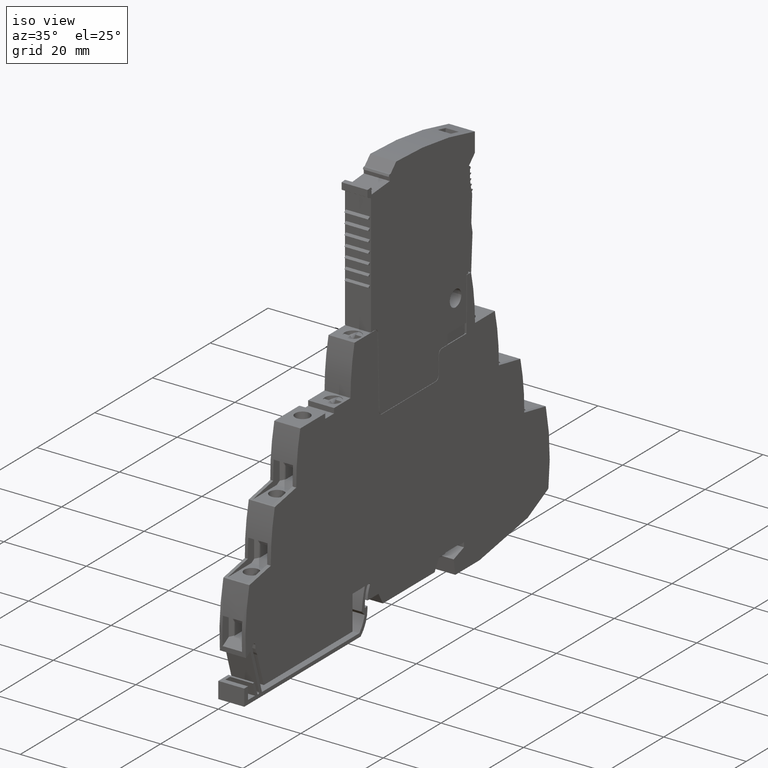
[diagram: clean part render]
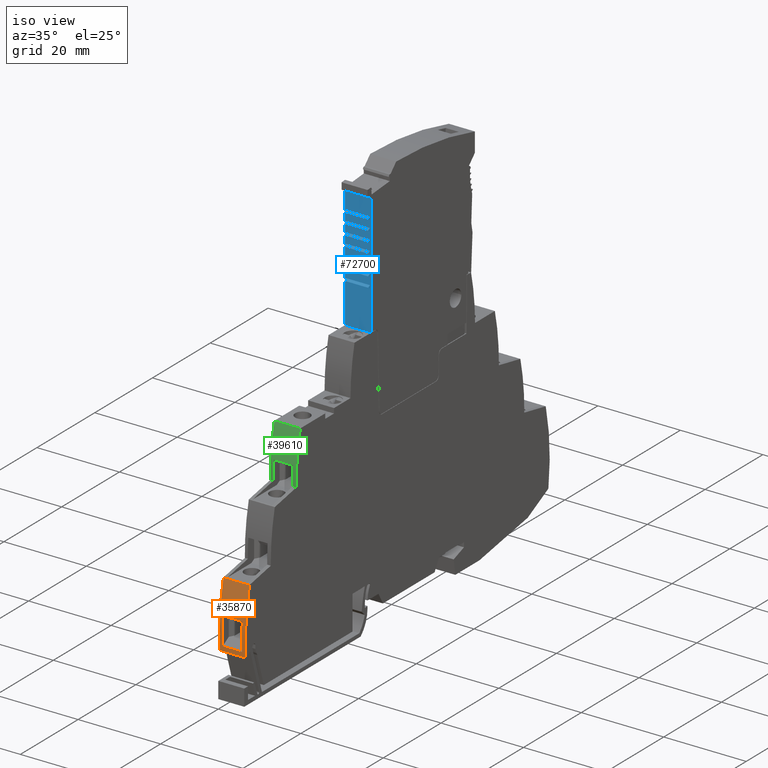
[diagram: same view with three faces highlighted in distinct colors, each labeled with its STEP entity id]
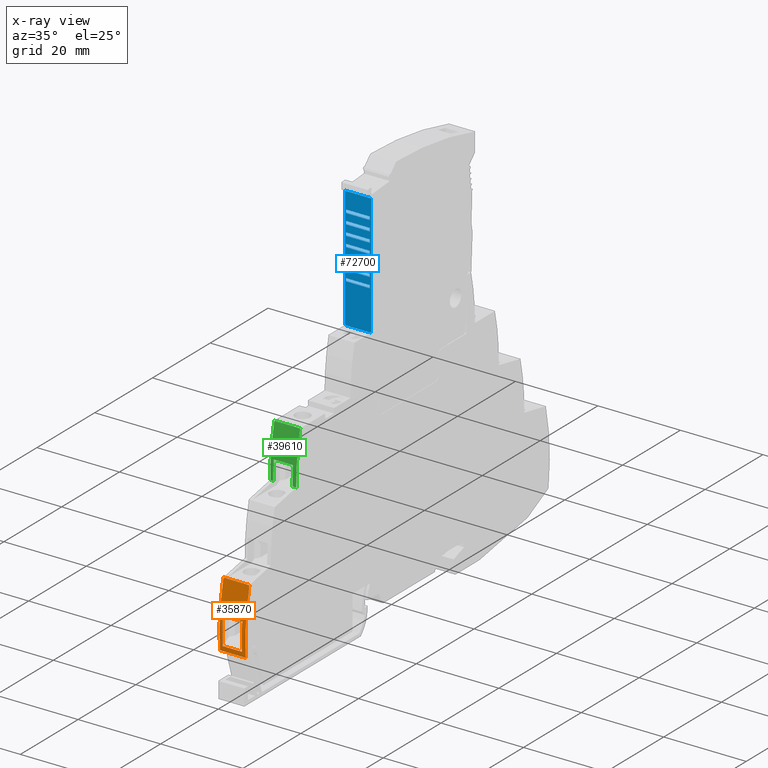
[diagram: x-ray of the same camera — body ghosted, the three highlighted faces saturated]
A machine part, iso view with three faces highlighted in distinct colors.
The next image is the same camera in x-ray (body ghosted, the three faces saturated) — at least one of them is partly hidden behind the body in this view.
Their STEP definitions:

[orange] entity #35870 — the highlighted cylindrical surface (partial cylindrical patch) has radius 50 mm, axis along (1, 0, -0).
#1810=CARTESIAN_POINT('',(-74.3182413511833,18.9751419925744,
2.09395134031628E-8));
#1820=VERTEX_POINT('',#1810);
#1850=CARTESIAN_POINT('',(-25.6882268660181,7.35095639014525,
-5.25671852713572E-8));
#1860=DIRECTION('',(-1.22225199816632E-9,1.09132836497945E-9,-1.));
#1870=DIRECTION('',(-0.997471411211158,-0.0710688667168697,
1.14160195535155E-9));
#1880=AXIS2_PLACEMENT_3D('',#1850,#1860,#1870);
#1890=CIRCLE('',#1880,50.);
#1900=CARTESIAN_POINT('',(-75.5385735993277,3.48534769696271,
6.48229886001244E-8));
#1910=VERTEX_POINT('',#1900);
#1920=EDGE_CURVE('',#1910,#1820,#1890,.T.);
#7440=CARTESIAN_POINT('',(-75.6141156097549,4.62962720800558,
5.43000035955577));
#7450=VERTEX_POINT('',#7440);
#7480=CARTESIAN_POINT('',(-75.6141156097549,4.6296272080056,
5.43000035378721));
#7490=DIRECTION('',(-1.22225140629036E-9,1.09132842902001E-9,-1.));
#7500=VECTOR('',#7490,1.);
#7510=LINE('',#7480,#7500);
#7520=CARTESIAN_POINT('',(-75.6141156154995,4.62962721313482,
0.730000220641234));
#7530=VERTEX_POINT('',#7520);
#7540=EDGE_CURVE('',#7450,#7530,#7510,.T.);
#14430=CARTESIAN_POINT('',(-75.538573591754,3.48534769171867,
6.30000000858315));
#14440=VERTEX_POINT('',#14430);
#14470=CARTESIAN_POINT('',(-25.6882268583179,7.35095638326988,
6.30000001194078));
#14480=DIRECTION('',(1.22225199816632E-9,-1.09132836497945E-9,1.));
#14490=DIRECTION('',(1.,-5.41623673195365E-17,-1.22225199816632E-9));
#14500=AXIS2_PLACEMENT_3D('',#14470,#14480,#14490);
#14510=CIRCLE('',#14500,50.);
#14520=CARTESIAN_POINT('',(-74.3182413449654,18.975141990376,
6.30000001706593));
#14530=VERTEX_POINT('',#14520);
#14540=EDGE_CURVE('',#14530,#14440,#14510,.T.);
#34210=CARTESIAN_POINT('',(-75.5385735944998,3.48534769265195,
3.95000034751214));
#34220=DIRECTION('',(1.22225199816632E-9,-1.09132836497945E-9,1.));
#34230=VECTOR('',#34220,1.);
#34240=LINE('',#34210,#34230);
#34250=EDGE_CURVE('',#1910,#14440,#34240,.T.);
#35440=CARTESIAN_POINT('',(-25.6882268611902,7.3509563858345,
3.9500002908011));
#35450=DIRECTION('',(1.22225199816632E-9,-1.09132836497945E-9,1.));
#35460=DIRECTION('',(1.,-5.41623673195365E-17,-1.22225199816632E-9));
#35470=AXIS2_PLACEMENT_3D('',#35440,#35450,#35460);
#35480=CYLINDRICAL_SURFACE('',#35470,50.);
#35490=CARTESIAN_POINT('',(-25.6882268651258,7.35095638934858,
0.730000222383652));
#35500=DIRECTION('',(1.22225199739033E-9,-1.09132836497945E-9,1.));
#35510=DIRECTION('',(-1.,1.27364785384998E-14,1.22225199739034E-9));
#35520=AXIS2_PLACEMENT_3D('',#35490,#35500,#35510);
#35530=CIRCLE('',#35520,50.);
#35540=CARTESIAN_POINT('',(-75.5350051650198,11.2623107738584,
0.730000162284448));
#35550=VERTEX_POINT('',#35540);
#35560=EDGE_CURVE('',#35550,#7530,#35530,.T.);
#35570=ORIENTED_EDGE('',*,*,#35560,.F.);
#35580=ORIENTED_EDGE('',*,*,#7540,.T.);
#35590=CARTESIAN_POINT('',(-25.6882268593813,7.35095638421933,
5.43000029573506));
#35600=DIRECTION('',(-1.22225200627213E-9,1.09132836497945E-9,-1.));
#35610=DIRECTION('',(-1.,-7.99360577730113E-16,1.22225200627213E-9));
#35620=AXIS2_PLACEMENT_3D('',#35590,#35600,#35610);
#35630=CIRCLE('',#35620,50.);
#35640=CARTESIAN_POINT('',(-75.5350051592752,11.2623107687291,
5.43000035583426));
#35650=VERTEX_POINT('',#35640);
#35660=EDGE_CURVE('',#7450,#35650,#35630,.T.);
#35670=ORIENTED_EDGE('',*,*,#35660,.F.);
#35680=CARTESIAN_POINT('',(-75.5350051650198,11.2623107738584,
0.730000287577548));
#35690=DIRECTION('',(1.22225442987642E-9,-1.09132824004588E-9,1.));
#35700=VECTOR('',#35690,1.);
#35710=LINE('',#35680,#35700);
#35720=EDGE_CURVE('',#35550,#35650,#35710,.T.);
#35730=ORIENTED_EDGE('',*,*,#35720,.T.);
#35740=EDGE_LOOP('',(#35730,#35670,#35580,#35570));
#35750=FACE_BOUND('',#35740,.T.);
#35760=ORIENTED_EDGE('',*,*,#14540,.F.);
#35770=ORIENTED_EDGE('',*,*,#34250,.T.);
#35780=ORIENTED_EDGE('',*,*,#1920,.F.);
#35790=CARTESIAN_POINT('',(-74.3182413475216,18.9751419942631,
3.95000036292504));
#35800=DIRECTION('',(1.22225199816632E-9,-1.09132836497945E-9,1.));
#35810=VECTOR('',#35800,1.);
#35820=LINE('',#35790,#35810);
#35830=EDGE_CURVE('',#1820,#14530,#35820,.T.);
#35840=ORIENTED_EDGE('',*,*,#35830,.F.);
#35850=EDGE_LOOP('',(#35840,#35780,#35770,#35760));
#35860=FACE_OUTER_BOUND('',#35850,.T.);
#35870=ADVANCED_FACE('',(#35750,#35860),#35480,.T.);

[blue] entity #72700 — the highlighted planar face has unit normal (-0, 1, -0).
#51270=CARTESIAN_POINT('',(-32.2143311195118,58.2109665466477,0.1));
#51280=VERTEX_POINT('',#51270);
#51310=CARTESIAN_POINT('',(-32.2143311195118,58.2109665466478,
0.0999999999448238));
#51320=DIRECTION('',(0.,-1.10352412089834E-9,1.));
#51330=VECTOR('',#51320,1.);
#51340=LINE('',#51310,#51330);
#51350=CARTESIAN_POINT('',(-32.2143311195118,58.2109665399162,6.2));
#51360=VERTEX_POINT('',#51350);
#51370=EDGE_CURVE('',#51280,#51360,#51340,.T.);
#57920=CARTESIAN_POINT('',(-32.2143223474418,87.6620689298492,
9.67371577147192E-8));
#57930=VERTEX_POINT('',#57920);
#57960=CARTESIAN_POINT('',(-32.2143310897264,58.3109665443083,
6.43475239809484E-8));
#57970=DIRECTION('',(2.97852011095547E-7,0.999999999999956,
1.10352358518995E-9));
#57980=VECTOR('',#57970,1.);
#57990=LINE('',#57960,#57980);
#58000=CARTESIAN_POINT('',(-32.2143310897266,58.3109665443082,
6.43475239809483E-8));
#58010=VERTEX_POINT('',#58000);
#58020=EDGE_CURVE('',#58010,#57930,#57990,.T.);
#65610=CARTESIAN_POINT('',(-32.2143310897267,58.3109665443083,
6.3000000036374));
#65620=VERTEX_POINT('',#65610);
#65650=CARTESIAN_POINT('',(-32.2143484577651,0.,6.30000000363738));
#65660=DIRECTION('',(2.97852008862565E-7,0.999999999999956,
3.78967331631682E-16));
#65670=VECTOR('',#65660,1.);
#65680=LINE('',#65650,#65670);
#65690=CARTESIAN_POINT('',(-32.2143223474418,87.662068922897,
6.30000000363741));
#65700=VERTEX_POINT('',#65690);
#65710=EDGE_CURVE('',#65620,#65700,#65680,.T.);
#69730=CARTESIAN_POINT('',(-32.2143310897266,58.3109665443082,0.1));
#69740=VERTEX_POINT('',#69730);
#69790=CARTESIAN_POINT('',(-32.2143310897266,58.3109665443082,0.));
#69800=DIRECTION('',(3.24428399143164E-16,-1.24901007012704E-20,1.));
#69810=VECTOR('',#69800,1.);
#69820=LINE('',#69790,#69810);
#69830=EDGE_CURVE('',#58010,#69740,#69820,.T.);
#69950=CARTESIAN_POINT('',(-32.2143274041796,70.6847189324796,
7.80022515785963E-8));
#69960=DIRECTION('',(0.999999999999956,-2.97852008862565E-7,
-3.2442839914687E-16));
#69970=DIRECTION('',(2.97852008862565E-7,0.999999999999956,
1.10352358518995E-9));
#69980=AXIS2_PLACEMENT_3D('',#69950,#69960,#69970);
#69990=PLANE('',#69980);
#70000=CARTESIAN_POINT('',(-32.2143267519108,72.8746280840744,0.));
#70010=DIRECTION('',(2.26831076595493E-16,1.85078313854415E-9,-1.));
#70020=VECTOR('',#70010,1.);
#70030=LINE('',#70000,#70020);
#70040=CARTESIAN_POINT('',(-32.2143267519108,72.8746280728771,
6.0500005492388));
#70050=VERTEX_POINT('',#70040);
#70060=CARTESIAN_POINT('',(-32.2143267519108,72.8746280836117,
0.250000549238798));
#70070=VERTEX_POINT('',#70060);
#70080=EDGE_CURVE('',#70050,#70070,#70030,.T.);
#70090=ORIENTED_EDGE('',*,*,#70080,.T.);
#70100=CARTESIAN_POINT('',(-32.2143484577651,0.,6.05000062965759));
#70110=DIRECTION('',(2.97852008862565E-7,0.999999999999956,
-1.10352243317066E-9));
#70120=VECTOR('',#70110,1.);
#70130=LINE('',#70100,#70120);
#70140=CARTESIAN_POINT('',(-32.214326536181,73.598913093411,
6.05000054843953));
#70150=VERTEX_POINT('',#70140);
#70160=EDGE_CURVE('',#70050,#70150,#70130,.T.);
#70170=ORIENTED_EDGE('',*,*,#70160,.F.);
#70180=CARTESIAN_POINT('',(-32.214326536181,73.5989130684836,0.));
#70190=DIRECTION('',(1.55164670466063E-15,4.12022839850694E-9,1.));
#70200=VECTOR('',#70190,1.);
#70210=LINE('',#70180,#70200);
#70220=CARTESIAN_POINT('',(-32.214326536181,73.5989130695137,
0.250000548439532));
#70230=VERTEX_POINT('',#70220);
#70240=EDGE_CURVE('',#70230,#70150,#70210,.T.);
#70250=ORIENTED_EDGE('',*,*,#70240,.T.);
#70260=CARTESIAN_POINT('',(-32.2143484577651,0.,0.250000629657584));
#70270=DIRECTION('',(2.97852008862565E-7,0.999999999999956,
-1.10352243317066E-9));
#70280=VECTOR('',#70270,1.);
#70290=LINE('',#70260,#70280);
#70300=EDGE_CURVE('',#70070,#70230,#70290,.T.);
#70310=ORIENTED_EDGE('',*,*,#70300,.T.);
#70320=EDGE_LOOP('',(#70310,#70250,#70170,#70090));
#70330=FACE_BOUND('',#70320,.T.);
#70340=CARTESIAN_POINT('',(-32.2143260092136,75.3681389046951,0.));
#70350=DIRECTION('',(2.26831076595493E-16,1.85078313854415E-9,-1.));
#70360=VECTOR('',#70350,1.);
#70370=LINE('',#70340,#70360);
#70380=CARTESIAN_POINT('',(-32.2143260006724,75.368138888618,
6.05000054648716));
#70390=VERTEX_POINT('',#70380);
#70400=CARTESIAN_POINT('',(-32.2143260092136,75.3681389042324,
0.25000054608031));
#70410=VERTEX_POINT('',#70400);
#70420=EDGE_CURVE('',#70390,#70410,#70370,.T.);
#70430=ORIENTED_EDGE('',*,*,#70420,.T.);
#70440=CARTESIAN_POINT('',(-32.2143484577651,0.,6.05000062965759));
#70450=DIRECTION('',(2.97852008862565E-7,0.999999999999956,
-1.10352243317066E-9));
#70460=VECTOR('',#70450,1.);
#70470=LINE('',#70440,#70460);
#70480=CARTESIAN_POINT('',(-32.2143257895928,76.1054876001455,
6.05000054567347));
#70490=VERTEX_POINT('',#70480);
#70500=EDGE_CURVE('',#70390,#70490,#70470,.T.);
#70510=ORIENTED_EDGE('',*,*,#70500,.F.);
#70520=CARTESIAN_POINT('',(-32.2143257895928,76.1054875752181,0.));
#70530=DIRECTION('',(1.55164670466063E-15,4.12022839850694E-9,1.));
#70540=VECTOR('',#70530,1.);
#70550=LINE('',#70520,#70540);
#70560=CARTESIAN_POINT('',(-32.2143257895928,76.1054875762482,
0.250000545673471));
#70570=VERTEX_POINT('',#70560);
#70580=EDGE_CURVE('',#70570,#70490,#70550,.T.);
#70590=ORIENTED_EDGE('',*,*,#70580,.T.);
#70600=CARTESIAN_POINT('',(-32.2143484577651,0.,0.250000629657584));
#70610=DIRECTION('',(2.97852008862565E-7,0.999999999999956,
-1.10352243317066E-9));
#70620=VECTOR('',#70610,1.);
#70630=LINE('',#70600,#70620);
#70640=EDGE_CURVE('',#70410,#70570,#70630,.T.);
#70650=ORIENTED_EDGE('',*,*,#70640,.T.);
#70660=EDGE_LOOP('',(#70650,#70590,#70510,#70430));
#70670=FACE_BOUND('',#70660,.T.);
#70680=CARTESIAN_POINT('',(-32.2143280293575,68.5857640550146,0.));
#70690=DIRECTION('',(1.55164670466063E-15,4.12022839850694E-9,1.));
#70700=VECTOR('',#70690,1.);
#70710=LINE('',#70680,#70700);
#70720=CARTESIAN_POINT('',(-32.2143280348613,68.5857640528337,
0.250000553971655));
#70730=VERTEX_POINT('',#70720);
#70740=CARTESIAN_POINT('',(-32.2143280293575,68.585764079942,
6.05000055435686));
#70750=VERTEX_POINT('',#70740);
#70760=EDGE_CURVE('',#70730,#70750,#70710,.T.);
#70770=ORIENTED_EDGE('',*,*,#70760,.T.);
#70780=CARTESIAN_POINT('',(-32.2143484577651,0.,0.250000629657584));
#70790=DIRECTION('',(2.97852008862565E-7,0.999999999999956,
-1.10352243317066E-9));
#70800=VECTOR('',#70790,1.);
#70810=LINE('',#70780,#70800);
#70820=CARTESIAN_POINT('',(-32.2143282373052,67.8876064423702,
0.250000554742089));
#70830=VERTEX_POINT('',#70820);
#70840=EDGE_CURVE('',#70830,#70730,#70810,.T.);
#70850=ORIENTED_EDGE('',*,*,#70840,.T.);
#70860=CARTESIAN_POINT('',(-32.2143282373052,67.8876064428328,0.));
#70870=DIRECTION('',(2.26831076595493E-16,1.85078313854415E-9,-1.));
#70880=VECTOR('',#70870,1.);
#70890=LINE('',#70860,#70880);
#70900=CARTESIAN_POINT('',(-32.2143282373052,67.8876064316356,
6.05000055474209));
#70910=VERTEX_POINT('',#70900);
#70920=EDGE_CURVE('',#70910,#70830,#70890,.T.);
#70930=ORIENTED_EDGE('',*,*,#70920,.T.);
#70940=CARTESIAN_POINT('',(-32.2143484577651,0.,6.05000062965759));
#70950=DIRECTION('',(2.97852008862565E-7,0.999999999999956,
-1.10352243317066E-9));
#70960=VECTOR('',#70950,1.);
#70970=LINE('',#70940,#70960);
#70980=EDGE_CURVE('',#70910,#70750,#70970,.T.);
#70990=ORIENTED_EDGE('',*,*,#70980,.F.);
#71000=EDGE_LOOP('',(#70990,#70930,#70850,#70770));
#71010=FACE_BOUND('',#71000,.T.);
#71020=CARTESIAN_POINT('',(-32.2143237811219,82.8486713665573,0.));
#71030=DIRECTION('',(2.26831076595493E-16,1.85078313854415E-9,-1.));
#71040=VECTOR('',#71030,1.);
#71050=LINE('',#71020,#71040);
#71060=CARTESIAN_POINT('',(-32.2143237811219,82.8486713553601,
6.05000053823222));
#71070=VERTEX_POINT('',#71060);
#71080=CARTESIAN_POINT('',(-32.2143237811219,82.8486713660946,
0.250000538232218));
#71090=VERTEX_POINT('',#71080);
#71100=EDGE_CURVE('',#71070,#71090,#71050,.T.);
#71110=ORIENTED_EDGE('',*,*,#71100,.T.);
#71120=CARTESIAN_POINT('',(-32.2143484577651,0.,6.05000062965759));
#71130=DIRECTION('',(2.97852008862565E-7,0.999999999999956,
-1.10352243317066E-9));
#71140=VECTOR('',#71130,1.);
#71150=LINE('',#71120,#71140);
#71160=CARTESIAN_POINT('',(-32.214323549828,83.6252111203491,
6.05000053737529));
#71170=VERTEX_POINT('',#71160);
#71180=EDGE_CURVE('',#71070,#71170,#71150,.T.);
#71190=ORIENTED_EDGE('',*,*,#71180,.F.);
#71200=CARTESIAN_POINT('',(-32.214323549828,83.6252110954218,0.));
#71210=DIRECTION('',(1.55164670466063E-15,4.12022839850694E-9,1.));
#71220=VECTOR('',#71210,1.);
#71230=LINE('',#71200,#71220);
#71240=CARTESIAN_POINT('',(-32.214323549828,83.6252110964518,
0.250000537375287));
#71250=VERTEX_POINT('',#71240);
#71260=EDGE_CURVE('',#71250,#71170,#71230,.T.);
#71270=ORIENTED_EDGE('',*,*,#71260,.T.);
#71280=CARTESIAN_POINT('',(-32.2143484577651,0.,0.250000629657584));
#71290=DIRECTION('',(2.97852008862565E-7,0.999999999999956,
-1.10352243317066E-9));
#71300=VECTOR('',#71290,1.);
#71310=LINE('',#71280,#71300);
#71320=EDGE_CURVE('',#71090,#71250,#71310,.T.);
#71330=ORIENTED_EDGE('',*,*,#71320,.T.);
#71340=EDGE_LOOP('',(#71330,#71270,#71190,#71110));
#71350=FACE_BOUND('',#71340,.T.);
#71360=CARTESIAN_POINT('',(-32.2143245238191,80.3551605459366,0.));
#71370=DIRECTION('',(2.26831076595493E-16,1.85078313854415E-9,-1.));
#71380=VECTOR('',#71370,1.);
#71390=LINE('',#71360,#71380);
#71400=CARTESIAN_POINT('',(-32.2143245149589,80.3551605296772,
6.05000054098386));
#71410=VERTEX_POINT('',#71400);
#71420=CARTESIAN_POINT('',(-32.2143245238192,80.3551605454739,
0.250000540983863));
#71430=VERTEX_POINT('',#71420);
#71440=EDGE_CURVE('',#71410,#71430,#71390,.T.);
#71450=ORIENTED_EDGE('',*,*,#71440,.T.);
#71460=CARTESIAN_POINT('',(-32.2143484577651,0.,6.05000062965759));
#71470=DIRECTION('',(2.97852008862565E-7,0.999999999999956,
-1.10352243317066E-9));
#71480=VECTOR('',#71470,1.);
#71490=LINE('',#71460,#71480);
#71500=CARTESIAN_POINT('',(-32.2143242964163,81.1186366136145,
6.05000054014135));
#71510=VERTEX_POINT('',#71500);
#71520=EDGE_CURVE('',#71410,#71510,#71490,.T.);
#71530=ORIENTED_EDGE('',*,*,#71520,.F.);
#71540=CARTESIAN_POINT('',(-32.2143242964163,81.1186365886871,0.));
#71550=DIRECTION('',(1.55164670466063E-15,4.12022839850694E-9,1.));
#71560=VECTOR('',#71550,1.);
#71570=LINE('',#71540,#71560);
#71580=CARTESIAN_POINT('',(-32.2143242964163,81.1186365719804,
0.250000540141349));
#71590=VERTEX_POINT('',#71580);
#71600=EDGE_CURVE('',#71590,#71510,#71570,.T.);
#71610=ORIENTED_EDGE('',*,*,#71600,.T.);
#71620=CARTESIAN_POINT('',(-32.2143484577651,0.,0.250000629657584));
#71630=DIRECTION('',(2.97852008862565E-7,0.999999999999956,
-1.10352243317066E-9));
#71640=VECTOR('',#71630,1.);
#71650=LINE('',#71620,#71640);
#71660=EDGE_CURVE('',#71430,#71590,#71650,.T.);
#71670=ORIENTED_EDGE('',*,*,#71660,.T.);
#71680=EDGE_LOOP('',(#71670,#71610,#71530,#71450));
#71690=FACE_BOUND('',#71680,.T.);
#71700=CARTESIAN_POINT('',(-32.2143250430045,78.6120620819527,0.));
#71710=DIRECTION('',(1.55164670466063E-15,4.12022839850694E-9,1.));
#71720=VECTOR('',#71710,1.);
#71730=LINE('',#71700,#71720);
#71740=CARTESIAN_POINT('',(-32.214325049167,78.6120620793876,
0.25000054290741));
#71750=VERTEX_POINT('',#71740);
#71760=CARTESIAN_POINT('',(-32.2143250430045,78.6120621068801,
6.05000054290741));
#71770=VERTEX_POINT('',#71760);
#71780=EDGE_CURVE('',#71750,#71770,#71730,.T.);
#71790=ORIENTED_EDGE('',*,*,#71780,.T.);
#71800=CARTESIAN_POINT('',(-32.2143484577651,0.,0.250000629657584));
#71810=DIRECTION('',(2.97852008862565E-7,0.999999999999956,
-1.10352243317066E-9));
#71820=VECTOR('',#71810,1.);
#71830=LINE('',#71800,#71820);
#71840=CARTESIAN_POINT('',(-32.2143252665163,77.8616497248532,
0.250000543735508));
#71850=VERTEX_POINT('',#71840);
#71860=EDGE_CURVE('',#71850,#71750,#71830,.T.);
#71870=ORIENTED_EDGE('',*,*,#71860,.T.);
#71880=CARTESIAN_POINT('',(-32.2143252665163,77.8616497253159,0.));
#71890=DIRECTION('',(2.26831076595493E-16,1.85078313854415E-9,-1.));
#71900=VECTOR('',#71890,1.);
#71910=LINE('',#71880,#71900);
#71920=CARTESIAN_POINT('',(-32.2143252665163,77.8616497141186,
6.05000054373551));
#71930=VERTEX_POINT('',#71920);
#71940=EDGE_CURVE('',#71930,#71850,#71910,.T.);
#71950=ORIENTED_EDGE('',*,*,#71940,.T.);
#71960=CARTESIAN_POINT('',(-32.2143484577651,0.,6.05000062965759));
#71970=DIRECTION('',(2.97852008862565E-7,0.999999999999956,
-1.10352243317066E-9));
#71980=VECTOR('',#71970,1.);
#71990=LINE('',#71960,#71980);
#72000=EDGE_CURVE('',#71930,#71770,#71990,.T.);
#72010=ORIENTED_EDGE('',*,*,#72000,.F.);
#72020=EDGE_LOOP('',(#72010,#71950,#71870,#71790));
#72030=FACE_BOUND('',#72020,.T.);
#72040=CARTESIAN_POINT('',(-32.214327494608,70.3811172634535,0.));
#72050=DIRECTION('',(2.26831076595493E-16,1.85078313854415E-9,-1.));
#72060=VECTOR('',#72050,1.);
#72070=LINE('',#72040,#72060);
#72080=CARTESIAN_POINT('',(-32.214327494608,70.3811172331681,
6.05000055199045));
#72090=VERTEX_POINT('',#72080);
#72100=CARTESIAN_POINT('',(-32.214327494608,70.3811172629909,
0.250000551990442));
#72110=VERTEX_POINT('',#72100);
#72120=EDGE_CURVE('',#72090,#72110,#72070,.T.);
#72130=ORIENTED_EDGE('',*,*,#72120,.T.);
#72140=CARTESIAN_POINT('',(-32.2143484577651,0.,6.05000062965759));
#72150=DIRECTION('',(2.97852008862565E-7,0.999999999999956,
-1.10352243317066E-9));
#72160=VECTOR('',#72150,1.);
#72170=LINE('',#72140,#72160);
#72180=CARTESIAN_POINT('',(-32.2143272827693,71.0923385866765,
6.0500005512056));
#72190=VERTEX_POINT('',#72180);
#72200=EDGE_CURVE('',#72090,#72190,#72170,.T.);
#72210=ORIENTED_EDGE('',*,*,#72200,.F.);
#72220=CARTESIAN_POINT('',(-32.2143272827693,71.0923385617491,0.));
#72230=DIRECTION('',(1.55164670466063E-15,4.12022839850694E-9,1.));
#72240=VECTOR('',#72230,1.);
#72250=LINE('',#72220,#72240);
#72260=CARTESIAN_POINT('',(-32.2143272827693,71.0923385627792,
0.250000551205593));
#72270=VERTEX_POINT('',#72260);
#72280=EDGE_CURVE('',#72270,#72190,#72250,.T.);
#72290=ORIENTED_EDGE('',*,*,#72280,.T.);
#72300=CARTESIAN_POINT('',(-32.2143484577651,0.,0.250000629657584));
#72310=DIRECTION('',(2.97852008862565E-7,0.999999999999956,
-1.10352243317066E-9));
#72320=VECTOR('',#72310,1.);
#72330=LINE('',#72300,#72320);
#72340=EDGE_CURVE('',#72110,#72270,#72330,.T.);
#72350=ORIENTED_EDGE('',*,*,#72340,.T.);
#72360=EDGE_LOOP('',(#72350,#72290,#72210,#72130));
#72370=FACE_BOUND('',#72360,.T.);
#72380=ORIENTED_EDGE('',*,*,#69830,.T.);
#72390=ORIENTED_EDGE('',*,*,#58020,.F.);
#72400=CARTESIAN_POINT('',(-32.2143223474418,87.6620689298492,0.));
#72410=DIRECTION('',(-4.25831758759046E-18,-1.10352358519E-9,1.));
#72420=VECTOR('',#72410,1.);
#72430=LINE('',#72400,#72420);
#72440=EDGE_CURVE('',#57930,#65700,#72430,.T.);
#72450=ORIENTED_EDGE('',*,*,#72440,.F.);
#72460=ORIENTED_EDGE('',*,*,#65710,.T.);
#72470=CARTESIAN_POINT('',(-32.2143310897266,58.3109665443083,
6.30000000448426));
#72480=DIRECTION('',(0.,0.,-1.));
#72490=VECTOR('',#72480,1.);
#72500=LINE('',#72470,#72490);
#72510=CARTESIAN_POINT('',(-32.2143310897266,58.3109665443083,6.2));
#72520=VERTEX_POINT('',#72510);
#72530=EDGE_CURVE('',#65620,#72520,#72500,.T.);
#72540=ORIENTED_EDGE('',*,*,#72530,.F.);
#72550=CARTESIAN_POINT('',(-32.2143310897264,58.3109665443083,6.2));
#72560=DIRECTION('',(-2.97851983077681E-7,-0.999999999999956,0.));
#72570=VECTOR('',#72560,1.);
#72580=LINE('',#72550,#72570);
#72590=EDGE_CURVE('',#72520,#51360,#72580,.T.);
#72600=ORIENTED_EDGE('',*,*,#72590,.F.);
#72610=ORIENTED_EDGE('',*,*,#51370,.T.);
#72620=CARTESIAN_POINT('',(-32.2143484577651,0.,0.1));
#72630=DIRECTION('',(-2.97852008862565E-7,-0.999999999999956,
-1.25466755312043E-20));
#72640=VECTOR('',#72630,1.);
#72650=LINE('',#72620,#72640);
#72660=EDGE_CURVE('',#69740,#51280,#72650,.T.);
#72670=ORIENTED_EDGE('',*,*,#72660,.T.);
#72680=EDGE_LOOP('',(#72670,#72610,#72600,#72540,#72460,#72450,#72390,
#72380));
#72690=FACE_OUTER_BOUND('',#72680,.T.);
#72700=ADVANCED_FACE('',(#70330,#70670,#71010,#71350,#71690,#72030,
#72370,#72690),#69990,.F.);

[green] entity #39610 — the highlighted cylindrical surface (partial cylindrical patch) has radius 50 mm, axis along (1, -0, -0).
#1450=CARTESIAN_POINT('',(-56.6854746019642,46.5999999451111,
5.14241960291561E-8));
#1460=VERTEX_POINT('',#1450);
#1510=CARTESIAN_POINT('',(-8.09086787919981,34.8286704729738,
3.8434255777986E-8));
#1520=DIRECTION('',(1.27233440234888E-9,1.65759239937384E-24,-1.));
#1530=DIRECTION('',(-0.999966514571986,-0.00818350381889616,
-1.27229179768684E-9));
#1540=AXIS2_PLACEMENT_3D('',#1510,#1520,#1530);
#1550=CIRCLE('',#1540,50.);
#1560=CARTESIAN_POINT('',(-58.0865325768243,34.1702546144893,
3.77076786875727E-8));
#1570=VERTEX_POINT('',#1560);
#1580=EDGE_CURVE('',#1570,#1460,#1550,.T.);
#14770=CARTESIAN_POINT('',(-58.08653258484,34.1702546144893,
6.2999999707193));
#14780=VERTEX_POINT('',#14770);
#14810=CARTESIAN_POINT('',(-8.09086788721552,34.8286704729738,
6.30000003433051));
#14820=DIRECTION('',(-1.27233439420783E-9,-1.90375798924838E-18,1.));
#14830=DIRECTION('',(-0.973730485764541,0.227703625559083,
-1.23891078729343E-9));
#14840=AXIS2_PLACEMENT_3D('',#14810,#14820,#14830);
#14850=CIRCLE('',#14840,50.);
#14860=CARTESIAN_POINT('',(-56.6854746108229,46.5999999381589,
6.29999997250192));
#14870=VERTEX_POINT('',#14860);
#14880=EDGE_CURVE('',#14870,#14780,#14850,.T.);
#38460=CARTESIAN_POINT('',(-58.0865325777531,34.1702546144893,
0.730000185386637));
#38470=VERTEX_POINT('',#38460);
#38640=CARTESIAN_POINT('',(-58.0865325837331,34.1702546144893,
5.43000033273208));
#38650=VERTEX_POINT('',#38640);
#38680=CARTESIAN_POINT('',(-58.08653258484,34.1702546144893,
6.29999997071931));
#38690=DIRECTION('',(-1.27233440234888E-9,-1.65436122510606E-24,1.));
#38700=VECTOR('',#38690,1.);
#38710=LINE('',#38680,#38700);
#38720=EDGE_CURVE('',#38650,#14780,#38710,.T.);
#38770=CARTESIAN_POINT('',(-58.08653258484,34.1702546144893,
6.29999997071931));
#38780=DIRECTION('',(-1.27233440234888E-9,-1.65436122510606E-24,1.));
#38790=VECTOR('',#38780,1.);
#38800=LINE('',#38770,#38790);
#38810=EDGE_CURVE('',#1570,#38470,#38800,.T.);
#39200=CARTESIAN_POINT('',(-8.09086788721552,34.8286704729738,
6.30000003433051));
#39210=DIRECTION('',(-1.27233440234888E-9,-1.65436122510606E-24,1.));
#39220=DIRECTION('',(0.207911690818067,-0.97814760073374,
2.64533196878349E-10));
#39230=AXIS2_PLACEMENT_3D('',#39200,#39210,#39220);
#39240=CYLINDRICAL_SURFACE('',#39230,50.);
#39250=ORIENTED_EDGE('',*,*,#14880,.F.);
#39260=ORIENTED_EDGE('',*,*,#38720,.T.);
#39270=CARTESIAN_POINT('',(-8.09086788610859,34.8286704729738,
5.43000039312083));
#39280=DIRECTION('',(1.27233440546429E-9,2.54974401007507E-20,-1.));
#39290=DIRECTION('',(-0.999966514571986,-0.00818350381889502,
-1.27229180080235E-9));
#39300=AXIS2_PLACEMENT_3D('',#39270,#39280,#39290);
#39310=CIRCLE('',#39300,50.);
#39320=CARTESIAN_POINT('',(-57.9358926104921,38.7623087666653,
5.43000033003052));
#39330=VERTEX_POINT('',#39320);
#39340=EDGE_CURVE('',#38650,#39330,#39310,.T.);
#39350=ORIENTED_EDGE('',*,*,#39340,.F.);
#39360=CARTESIAN_POINT('',(-57.9358926045123,38.7623087666627,
0.730000061578348));
#39370=DIRECTION('',(-1.27233403310196E-9,0.,1.));
#39380=VECTOR('',#39370,1.);
#39390=LINE('',#39360,#39380);
#39400=CARTESIAN_POINT('',(-57.9358926045121,38.7623087666653,
0.730000190213954));
#39410=VERTEX_POINT('',#39400);
#39420=EDGE_CURVE('',#39410,#39330,#39390,.T.);
#39430=ORIENTED_EDGE('',*,*,#39420,.T.);
#39440=CARTESIAN_POINT('',(-8.09086788012862,34.8286704729738,
0.730000124997888));
#39450=DIRECTION('',(-1.27233440211723E-9,-1.82831989286537E-20,1.));
#39460=DIRECTION('',(-0.996900494483508,0.0786727659265779,
-1.2683907946176E-9));
#39470=AXIS2_PLACEMENT_3D('',#39440,#39450,#39460);
#39480=CIRCLE('',#39470,50.);
#39490=EDGE_CURVE('',#39410,#38470,#39480,.T.);
#39500=ORIENTED_EDGE('',*,*,#39490,.F.);
#39510=ORIENTED_EDGE('',*,*,#38810,.T.);
#39520=ORIENTED_EDGE('',*,*,#1580,.F.);
#39530=CARTESIAN_POINT('',(-56.6854746108229,46.5999999381589,
6.29999997250192));
#39540=DIRECTION('',(-1.27233440234888E-9,-1.65436122510606E-24,1.));
#39550=VECTOR('',#39540,1.);
#39560=LINE('',#39530,#39550);
#39570=EDGE_CURVE('',#1460,#14870,#39560,.T.);
#39580=ORIENTED_EDGE('',*,*,#39570,.F.);
#39590=EDGE_LOOP('',(#39580,#39520,#39510,#39500,#39430,#39350,#39260,
#39250));
#39600=FACE_OUTER_BOUND('',#39590,.T.);
#39610=ADVANCED_FACE('',(#39600),#39240,.T.);